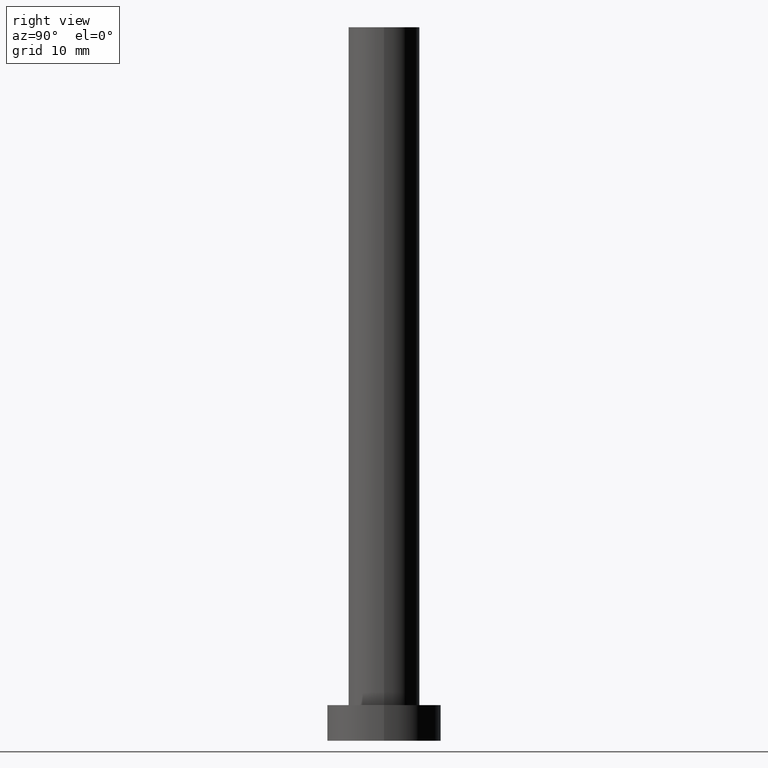
[diagram: clean part render]
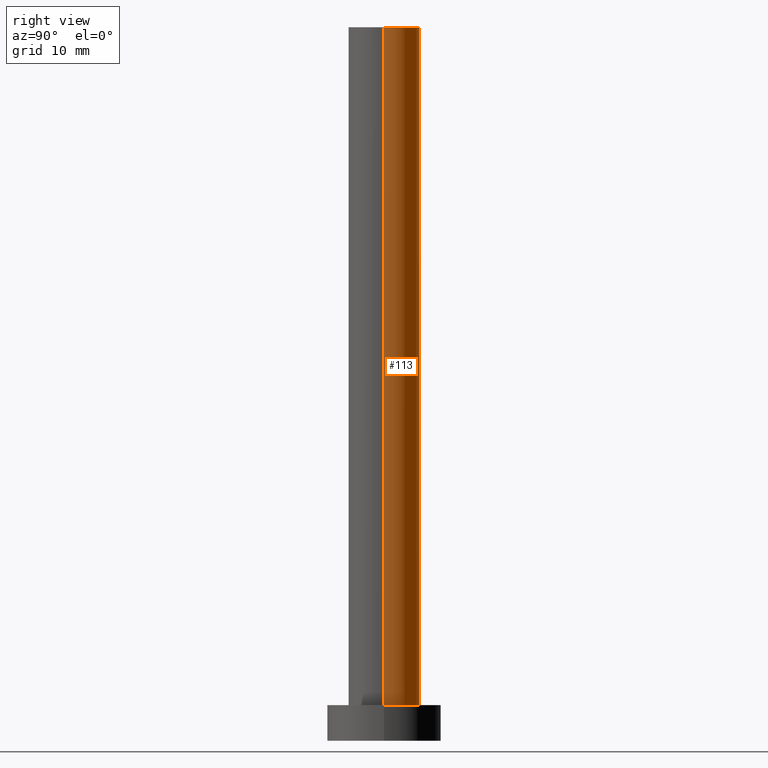
[diagram: same view with one face highlighted and labeled with its STEP entity id]
A machine part, right view. The second image highlights one B-rep face of the part: STEP entity #113.
In plain terms, the highlighted cylindrical surface (edge-blend (fillet) strip) has radius 5 mm, axis along (-0, -0, -1).
Its self-contained STEP definition (entity closure, byte-faithful):
#16 = CYLINDRICAL_SURFACE ( 'NONE', #213, 5.000000000000000888 ) ;
#18 = LINE ( 'NONE', #179, #161 ) ;
#20 = CARTESIAN_POINT ( 'NONE',  ( -5.000000000000000888, 0.000000000000000000, 100.0000000000000000 ) ) ;
#29 = EDGE_LOOP ( 'NONE', ( #222, #149, #128, #92 ) ) ;
#36 = FACE_OUTER_BOUND ( 'NONE', #29, .T. ) ;
#58 = DIRECTION ( 'NONE',  ( 1.000000000000000000, 0.000000000000000000, 0.000000000000000000 ) ) ;
#62 = EDGE_CURVE ( 'NONE', #75, #95, #18, .T. ) ;
#68 = VERTEX_POINT ( 'NONE', #195 ) ;
#75 = VERTEX_POINT ( 'NONE', #79 ) ;
#79 = CARTESIAN_POINT ( 'NONE',  ( 5.000000000000000888, 6.123233995736767268E-16, 100.0000000000000000 ) ) ;
#81 = CARTESIAN_POINT ( 'NONE',  ( 0.000000000000000000, 0.000000000000000000, 100.0000000000000000 ) ) ;
#88 = CIRCLE ( 'NONE', #200, 5.000000000000000888 ) ;
#92 = ORIENTED_EDGE ( 'NONE', *, *, #226, .F. ) ;
#95 = VERTEX_POINT ( 'NONE', #248 ) ;
#99 = DIRECTION ( 'NONE',  ( -1.000000000000000000, 0.000000000000000000, 0.000000000000000000 ) ) ;
#104 = EDGE_CURVE ( 'NONE', #75, #68, #166, .T. ) ;
#113 = ADVANCED_FACE ( 'NONE', ( #36 ), #16, .T. ) ;
#128 = ORIENTED_EDGE ( 'NONE', *, *, #205, .T. ) ;
#131 = VERTEX_POINT ( 'NONE', #180 ) ;
#137 = CARTESIAN_POINT ( 'NONE',  ( 0.000000000000000000, 0.000000000000000000, 100.0000000000000000 ) ) ;
#143 = CARTESIAN_POINT ( 'NONE',  ( 0.000000000000000000, 0.000000000000000000, 5.000000000000000000 ) ) ;
#149 = ORIENTED_EDGE ( 'NONE', *, *, #62, .T. ) ;
#153 = DIRECTION ( 'NONE',  ( -0.000000000000000000, -0.000000000000000000, -1.000000000000000000 ) ) ;
#161 = VECTOR ( 'NONE', #153, 1000.000000000000000 ) ;
#166 = CIRCLE ( 'NONE', #243, 5.000000000000000888 ) ;
#177 = VECTOR ( 'NONE', #236, 1000.000000000000000 ) ;
#179 = CARTESIAN_POINT ( 'NONE',  ( 5.000000000000000888, 6.123233995736767268E-16, 100.0000000000000000 ) ) ;
#180 = CARTESIAN_POINT ( 'NONE',  ( -5.000000000000000888, 0.000000000000000000, 5.000000000000000000 ) ) ;
#184 = LINE ( 'NONE', #20, #177 ) ;
#195 = CARTESIAN_POINT ( 'NONE',  ( -5.000000000000000888, 0.000000000000000000, 100.0000000000000000 ) ) ;
#200 = AXIS2_PLACEMENT_3D ( 'NONE', #143, #216, #238 ) ;
#205 = EDGE_CURVE ( 'NONE', #95, #131, #88, .T. ) ;
#212 = DIRECTION ( 'NONE',  ( -0.000000000000000000, -0.000000000000000000, -1.000000000000000000 ) ) ;
#213 = AXIS2_PLACEMENT_3D ( 'NONE', #137, #212, #99 ) ;
#216 = DIRECTION ( 'NONE',  ( 0.000000000000000000, 0.000000000000000000, 1.000000000000000000 ) ) ;
#222 = ORIENTED_EDGE ( 'NONE', *, *, #104, .F. ) ;
#226 = EDGE_CURVE ( 'NONE', #68, #131, #184, .T. ) ;
#228 = DIRECTION ( 'NONE',  ( 0.000000000000000000, 0.000000000000000000, 1.000000000000000000 ) ) ;
#236 = DIRECTION ( 'NONE',  ( -0.000000000000000000, -0.000000000000000000, -1.000000000000000000 ) ) ;
#238 = DIRECTION ( 'NONE',  ( 1.000000000000000000, 0.000000000000000000, 0.000000000000000000 ) ) ;
#243 = AXIS2_PLACEMENT_3D ( 'NONE', #81, #228, #58 ) ;
#248 = CARTESIAN_POINT ( 'NONE',  ( 5.000000000000000888, 6.123233995736767268E-16, 5.000000000000000000 ) ) ;